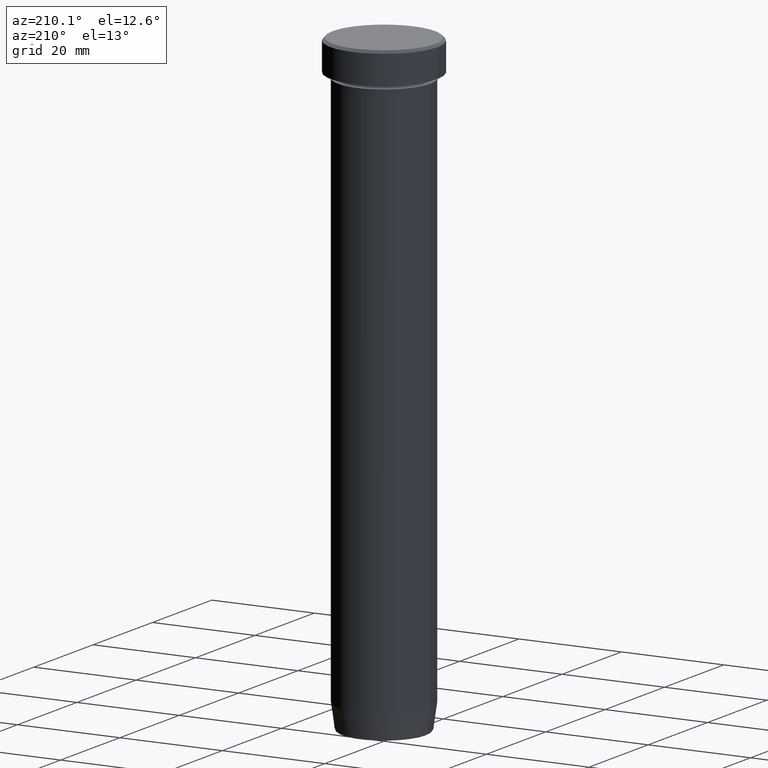
[diagram: clean part render]
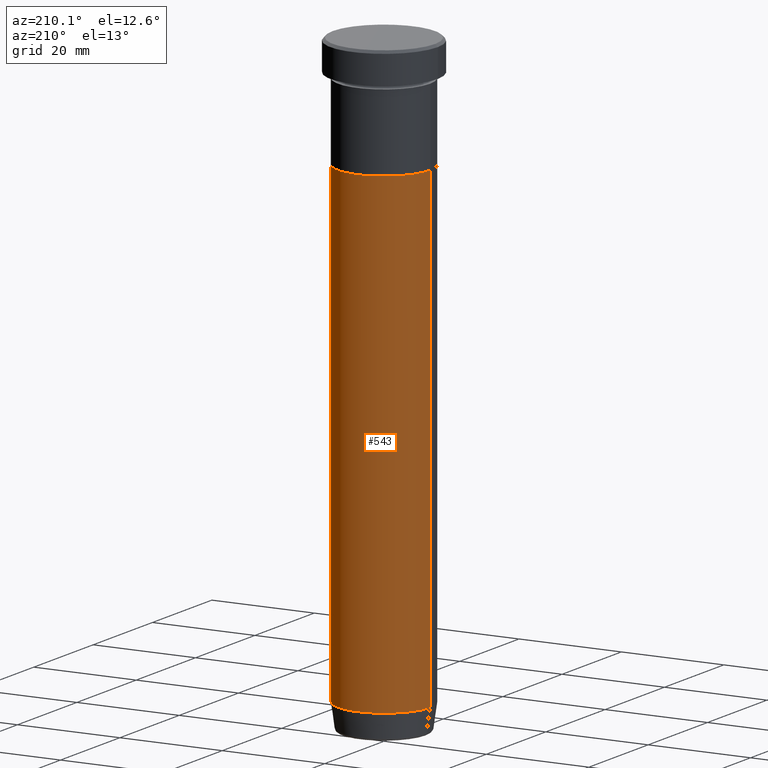
[diagram: same view with one face highlighted and labeled with its STEP entity id]
A machine part, auxiliary view. The second image highlights one B-rep face of the part: STEP entity #543.
In plain terms, the highlighted cylindrical surface (partial cylindrical patch) has radius 9 mm, axis along (-0, -0, 1).
Its self-contained STEP definition (entity closure, byte-faithful):
#1 = VERTEX_POINT ( 'NONE', #71 ) ;
#10 = DIRECTION ( 'NONE',  ( -0.000000000000000000, -0.000000000000000000, 1.000000000000000000 ) ) ;
#37 = LINE ( 'NONE', #518, #575 ) ;
#63 = DIRECTION ( 'NONE',  ( 1.000000000000000000, 0.000000000000000000, 0.000000000000000000 ) ) ;
#71 = CARTESIAN_POINT ( 'NONE',  ( -9.000000000000000000, 1.102182119232617714E-15, -114.9999999999999858 ) ) ;
#79 = ORIENTED_EDGE ( 'NONE', *, *, #385, .F. ) ;
#82 = EDGE_CURVE ( 'NONE', #259, #1, #158, .T. ) ;
#104 = CARTESIAN_POINT ( 'NONE',  ( 0.000000000000000000, 0.000000000000000000, -22.00000000000000000 ) ) ;
#117 = VERTEX_POINT ( 'NONE', #450 ) ;
#122 = DIRECTION ( 'NONE',  ( -0.000000000000000000, -0.000000000000000000, 1.000000000000000000 ) ) ;
#124 = FACE_OUTER_BOUND ( 'NONE', #317, .T. ) ;
#140 = LINE ( 'NONE', #144, #288 ) ;
#144 = CARTESIAN_POINT ( 'NONE',  ( 9.000000000000000000, 0.000000000000000000, 0.000000000000000000 ) ) ;
#158 = CIRCLE ( 'NONE', #318, 9.000000000000000000 ) ;
#159 = CYLINDRICAL_SURFACE ( 'NONE', #310, 9.000000000000000000 ) ;
#168 = DIRECTION ( 'NONE',  ( 1.000000000000000000, 0.000000000000000000, 0.000000000000000000 ) ) ;
#193 = CARTESIAN_POINT ( 'NONE',  ( -9.000000000000000000, 1.102182119232617714E-15, -22.00000000000000000 ) ) ;
#225 = CARTESIAN_POINT ( 'NONE',  ( 9.000000000000000000, 0.000000000000000000, -114.9999999999999858 ) ) ;
#259 = VERTEX_POINT ( 'NONE', #225 ) ;
#283 = DIRECTION ( 'NONE',  ( -0.000000000000000000, -0.000000000000000000, 1.000000000000000000 ) ) ;
#288 = VECTOR ( 'NONE', #283, 1000.000000000000000 ) ;
#308 = DIRECTION ( 'NONE',  ( 1.000000000000000000, 0.000000000000000000, 0.000000000000000000 ) ) ;
#310 = AXIS2_PLACEMENT_3D ( 'NONE', #446, #490, #168 ) ;
#317 = EDGE_LOOP ( 'NONE', ( #431, #376, #79, #496 ) ) ;
#318 = AXIS2_PLACEMENT_3D ( 'NONE', #357, #122, #308 ) ;
#325 = EDGE_CURVE ( 'NONE', #1, #336, #37, .T. ) ;
#336 = VERTEX_POINT ( 'NONE', #193 ) ;
#339 = DIRECTION ( 'NONE',  ( -0.000000000000000000, -0.000000000000000000, 1.000000000000000000 ) ) ;
#343 = AXIS2_PLACEMENT_3D ( 'NONE', #104, #10, #63 ) ;
#357 = CARTESIAN_POINT ( 'NONE',  ( 0.000000000000000000, 0.000000000000000000, -114.9999999999999858 ) ) ;
#376 = ORIENTED_EDGE ( 'NONE', *, *, #325, .T. ) ;
#378 = EDGE_CURVE ( 'NONE', #259, #117, #140, .T. ) ;
#385 = EDGE_CURVE ( 'NONE', #117, #336, #596, .T. ) ;
#431 = ORIENTED_EDGE ( 'NONE', *, *, #82, .T. ) ;
#446 = CARTESIAN_POINT ( 'NONE',  ( 0.000000000000000000, 0.000000000000000000, 0.000000000000000000 ) ) ;
#450 = CARTESIAN_POINT ( 'NONE',  ( 9.000000000000000000, 0.000000000000000000, -22.00000000000000000 ) ) ;
#490 = DIRECTION ( 'NONE',  ( -0.000000000000000000, -0.000000000000000000, 1.000000000000000000 ) ) ;
#496 = ORIENTED_EDGE ( 'NONE', *, *, #378, .F. ) ;
#518 = CARTESIAN_POINT ( 'NONE',  ( -9.000000000000000000, 1.102182119232617714E-15, 0.000000000000000000 ) ) ;
#543 = ADVANCED_FACE ( 'NONE', ( #124 ), #159, .T. ) ;
#575 = VECTOR ( 'NONE', #339, 1000.000000000000000 ) ;
#596 = CIRCLE ( 'NONE', #343, 9.000000000000000000 ) ;